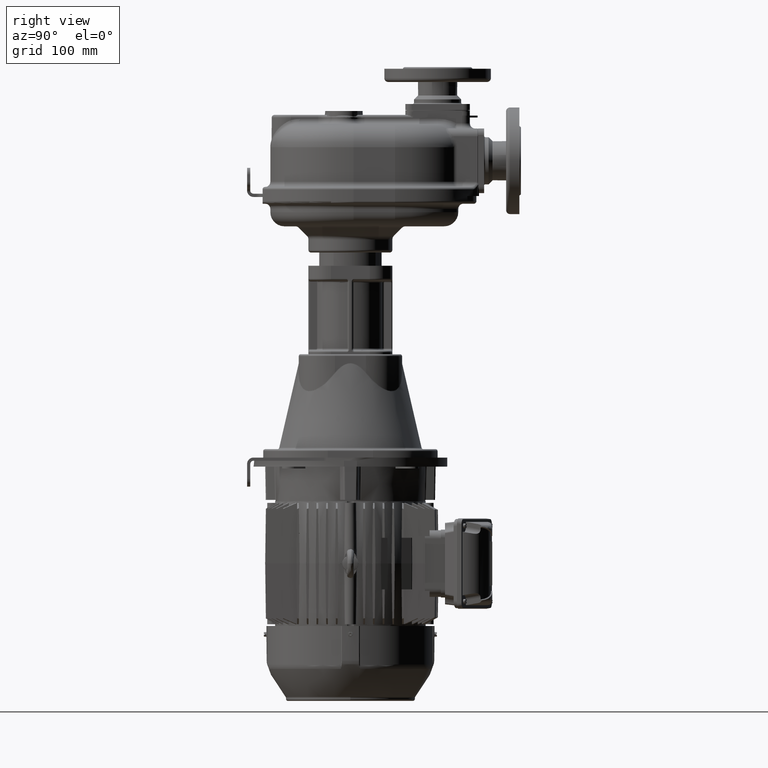
[diagram: clean part render]
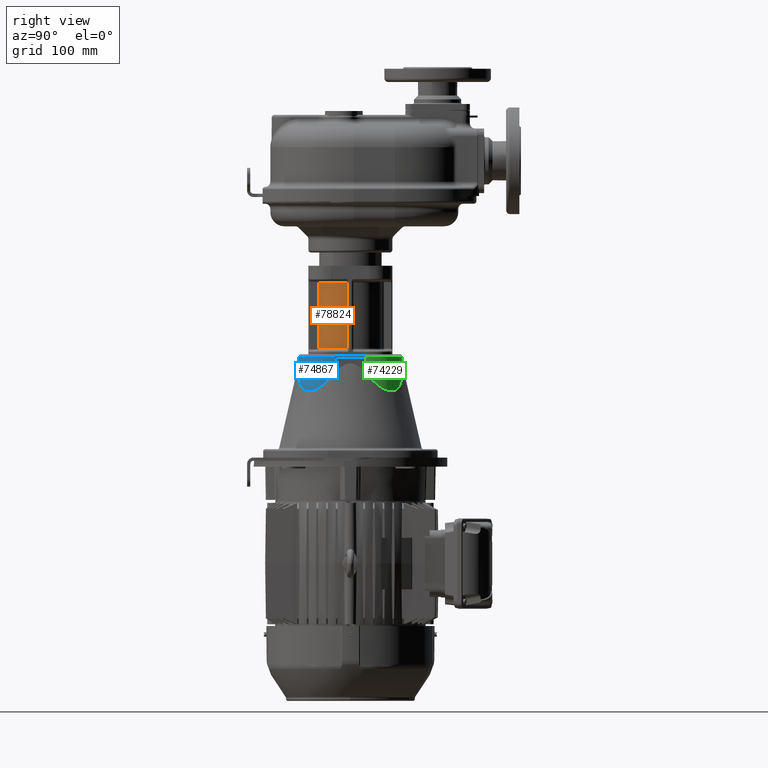
[diagram: same view with three faces highlighted in distinct colors, each labeled with its STEP entity id]
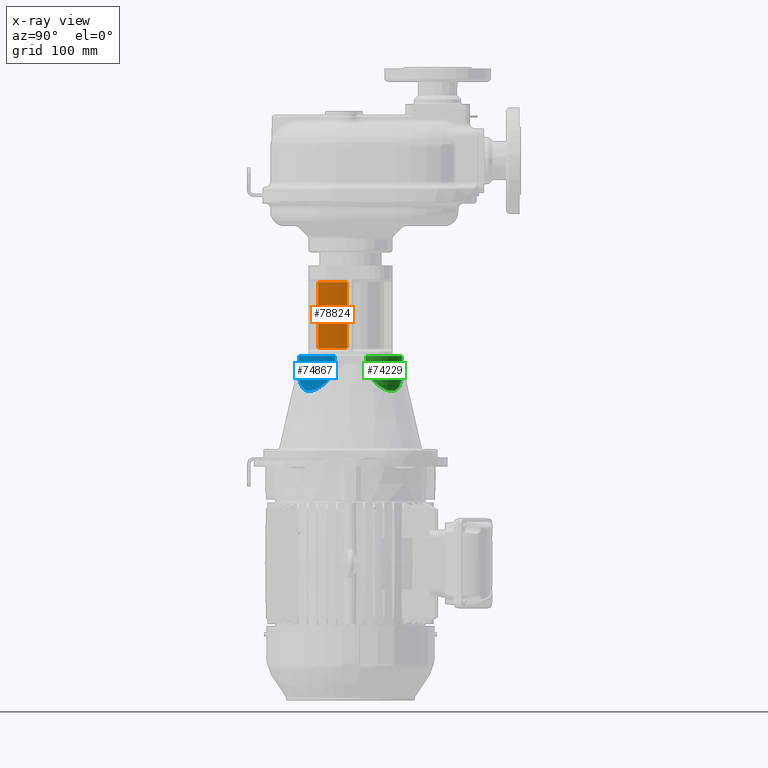
[diagram: x-ray of the same camera — body ghosted, the three highlighted faces saturated]
A machine part, right view with three faces highlighted in distinct colors.
The next image is the same camera in x-ray (body ghosted, the three faces saturated) — at least one of them is partly hidden behind the body in this view.
Their STEP definitions:

[orange] entity #78824 — the highlighted cylindrical surface (edge-blend (fillet) strip) has radius 50 mm, axis along (0, 0, -1).
#22696=CARTESIAN_POINT('',(0.E0,1.6E2,-2.635E2));
#22697=DIRECTION('',(0.E0,0.E0,1.E0));
#22698=DIRECTION('',(1.057692307692E-1,-9.943907028037E-1,0.E0));
#22699=AXIS2_PLACEMENT_3D('',#22696,#22697,#22698);
#22701=CARTESIAN_POINT('',(4.971953514590E1,1.547115384609E2,-2.635E2));
#22752=DIRECTION('',(-3.724079868013E-13,3.501164499932E-12,1.E0));
#22753=VECTOR('',#22752,1.02E2);
#22754=CARTESIAN_POINT('',(5.288461539069E0,1.102804648541E2,-2.635E2));
#22755=LINE('',#22754,#22753);
#22756=DIRECTION('',(3.501582466247E-12,-3.728259531165E-13,-1.E0));
#22757=VECTOR('',#22756,1.02E2);
#22758=CARTESIAN_POINT('',(4.971953514554E1,1.547115384610E2,-1.615E2));
#22759=LINE('',#22758,#22757);
#22760=CARTESIAN_POINT('',(5.288461539031E0,1.102804648545E2,-1.615E2));
#22837=CARTESIAN_POINT('',(0.E0,1.6E2,-1.615E2));
#22838=DIRECTION('',(0.E0,0.E0,-1.E0));
#22839=DIRECTION('',(9.943907028037E-1,-1.057692307692E-1,0.E0));
#22840=AXIS2_PLACEMENT_3D('',#22837,#22838,#22839);
#43121=VERTEX_POINT('',#22760);
#43122=CARTESIAN_POINT('',(5.288461539069E0,1.102804648541E2,-2.635E2));
#43123=VERTEX_POINT('',#43122);
#43143=VERTEX_POINT('',#22701);
#43144=CARTESIAN_POINT('',(4.971953514554E1,1.547115384610E2,-1.615E2));
#43145=VERTEX_POINT('',#43144);
#78811=CARTESIAN_POINT('',(0.E0,1.6E2,-1.366E2));
#78812=DIRECTION('',(0.E0,0.E0,-1.E0));
#78813=DIRECTION('',(0.E0,-1.E0,0.E0));
#78814=AXIS2_PLACEMENT_3D('',#78811,#78812,#78813);
#78815=CYLINDRICAL_SURFACE('',#78814,5.E1);
#78816=ORIENTED_EDGE('',*,*,#78802,.T.);
#78818=ORIENTED_EDGE('',*,*,#78817,.F.);
#78820=ORIENTED_EDGE('',*,*,#78819,.T.);
#78821=ORIENTED_EDGE('',*,*,#78660,.F.);
#78822=EDGE_LOOP('',(#78816,#78818,#78820,#78821));
#78823=FACE_OUTER_BOUND('',#78822,.F.);
#78824=ADVANCED_FACE('',(#78823),#78815,.T.);
#22700=CIRCLE('',#22699,5.E1);
#22841=CIRCLE('',#22840,5.E1);
#78660=EDGE_CURVE('',#43123,#43143,#22700,.T.);
#78802=EDGE_CURVE('',#43123,#43121,#22755,.T.);
#78817=EDGE_CURVE('',#43145,#43121,#22841,.T.);
#78819=EDGE_CURVE('',#43145,#43143,#22759,.T.);

[blue] entity #74867 — the highlighted cylindrical surface (edge-blend (fillet) strip) has radius 56 mm, axis along (0, 0, 1).
#19339=CARTESIAN_POINT('',(2.4E1,8.000000000021E1,-3.009786503790E2));
#19890=CARTESIAN_POINT('',(7.999999999978E1,1.36E2,-3.009786503790E2));
#19892=DIRECTION('',(-8.694848858162E-12,0.E0,-1.E0));
#19893=VECTOR('',#19892,2.547865037899E1);
#19894=CARTESIAN_POINT('',(8.E1,1.36E2,-2.755E2));
#19895=LINE('',#19894,#19893);
#19914=DIRECTION('',(0.E0,8.370792973462E-12,-1.E0));
#19915=VECTOR('',#19914,2.547865037899E1);
#19916=CARTESIAN_POINT('',(2.4E1,8.E1,-2.755E2));
#19917=LINE('',#19916,#19915);
#19918=CARTESIAN_POINT('',(2.4E1,1.36E2,-2.755E2));
#19919=DIRECTION('',(0.E0,0.E0,1.E0));
#19920=DIRECTION('',(0.E0,-1.E0,0.E0));
#19921=AXIS2_PLACEMENT_3D('',#19918,#19919,#19920);
#19923=CARTESIAN_POINT('',(7.999999999978E1,1.36E2,-3.009786503790E2));
#19924=CARTESIAN_POINT('',(7.999999999841E1,1.355676724683E2,
-3.015266865774E2));
#19925=CARTESIAN_POINT('',(7.998998081326E1,1.347097104714E2,
-3.025991661067E2));
#19926=CARTESIAN_POINT('',(7.994638299247E1,1.334451851839E2,
-3.041369507867E2));
#19927=CARTESIAN_POINT('',(7.987563354556E1,1.322024273054E2,
-3.056072532359E2));
#19928=CARTESIAN_POINT('',(7.977912547259E1,1.309819901915E2,
-3.070119020697E2));
#19929=CARTESIAN_POINT('',(7.965821725897E1,1.297840432757E2,
-3.083531006845E2));
#19930=CARTESIAN_POINT('',(7.951419216456E1,1.286084969839E2,
-3.096332163203E2));
#19931=CARTESIAN_POINT('',(7.934830462238E1,1.274554023195E2,
-3.108543455354E2));
#19932=CARTESIAN_POINT('',(7.916174347485E1,1.263246317512E2,
-3.120186699584E2));
#19933=CARTESIAN_POINT('',(7.895565096245E1,1.252160588409E2,
-3.131282604062E2));
#19934=CARTESIAN_POINT('',(7.873111388403E1,1.241294922137E2,
-3.141851516731E2));
#19935=CARTESIAN_POINT('',(7.848916589729E1,1.230647016260E2,
-3.151913170777E2));
#19936=CARTESIAN_POINT('',(7.823078707628E1,1.220214174002E2,
-3.161486720307E2));
#19937=CARTESIAN_POINT('',(7.795690419769E1,1.209993352873E2,
-3.170590716598E2));
#19938=CARTESIAN_POINT('',(7.766839182889E1,1.199981222090E2,
-3.179243081377E2));
#19939=CARTESIAN_POINT('',(7.736607245938E1,1.190174176251E2,
-3.187461120234E2));
#19940=CARTESIAN_POINT('',(7.705071683462E1,1.180568357608E2,
-3.195261525901E2));
#19941=CARTESIAN_POINT('',(7.672304556570E1,1.171159711564E2,
-3.202660353548E2));
#19942=CARTESIAN_POINT('',(7.638373004362E1,1.161944011159E2,
-3.209673027864E2));
#19943=CARTESIAN_POINT('',(7.603339361375E1,1.152916886129E2,
-3.216314343035E2));
#19944=CARTESIAN_POINT('',(7.567261287363E1,1.144073850873E2,
-3.222598464464E2));
#19945=CARTESIAN_POINT('',(7.530191905352E1,1.135410330776E2,
-3.228538931850E2));
#19946=CARTESIAN_POINT('',(7.492179931041E1,1.126921683521E2,
-3.234148665946E2));
#19947=CARTESIAN_POINT('',(7.453269817485E1,1.118603221811E2,
-3.239439974095E2));
#19948=CARTESIAN_POINT('',(7.413501915765E1,1.110450236847E2,
-3.244424555929E2));
#19949=CARTESIAN_POINT('',(7.372912597807E1,1.102458011992E2,
-3.249113515532E2));
#19950=CARTESIAN_POINT('',(7.331534398611E1,1.094621839739E2,
-3.253517370029E2));
#19951=CARTESIAN_POINT('',(7.289396153973E1,1.086937036609E2,
-3.257646059190E2));
#19952=CARTESIAN_POINT('',(7.246523141302E1,1.079398957759E2,
-3.261508954781E2));
#19953=CARTESIAN_POINT('',(7.202937214594E1,1.072003009739E2,
-3.265114870629E2));
#19954=CARTESIAN_POINT('',(7.158656938440E1,1.064744662567E2,
-3.268472072395E2));
#19955=CARTESIAN_POINT('',(7.113697731605E1,1.057619462726E2,
-3.271588288490E2));
#19956=CARTESIAN_POINT('',(7.068071965588E1,1.050623038637E2,
-3.274470721218E2));
#19957=CARTESIAN_POINT('',(7.021789086537E1,1.043751110197E2,
-3.277126056073E2));
#19958=CARTESIAN_POINT('',(6.974855728749E1,1.036999496870E2,
-3.279560471146E2));
#19959=CARTESIAN_POINT('',(6.927275823747E1,1.030364125171E2,
-3.281779646213E2));
#19960=CARTESIAN_POINT('',(6.879050700130E1,1.023841035007E2,
-3.283788771482E2));
#19961=CARTESIAN_POINT('',(6.830179193949E1,1.017426387559E2,
-3.285592555728E2));
#19962=CARTESIAN_POINT('',(6.780657729728E1,1.011116469418E2,
-3.287195236450E2));
#19963=CARTESIAN_POINT('',(6.730480416220E1,1.004907699022E2,
-3.288600584756E2));
#19964=CARTESIAN_POINT('',(6.679639114030E1,9.987966298764E1,
-3.289811912291E2));
#19965=CARTESIAN_POINT('',(6.628123520265E1,9.927799563931E1,
-3.290832076909E2));
#19966=CARTESIAN_POINT('',(6.575921244402E1,9.868545188824E1,
-3.291663487651E2));
#19967=CARTESIAN_POINT('',(6.523017857897E1,9.810173060738E1,
-3.292308108942E2));
#19968=CARTESIAN_POINT('',(6.469396991148E1,9.752654633390E1,
-3.292767465210E2));
#19969=CARTESIAN_POINT('',(6.415040366163E1,9.695962940854E1,
-3.293042644747E2));
#19970=CARTESIAN_POINT('',(6.359927855995E1,9.640072648224E1,
-3.293134299404E2));
#19971=CARTESIAN_POINT('',(6.304037559344E1,9.584960120003E1,
-3.293042646374E2));
#19972=CARTESIAN_POINT('',(6.247345839983E1,9.530603456E1,-3.292767468309E2));
#19973=CARTESIAN_POINT('',(6.189827367349E1,9.476982535130E1,
-3.292308113087E2));
#19974=CARTESIAN_POINT('',(6.131455189457E1,9.424079093122E1,
-3.291663492443E2));
#19975=CARTESIAN_POINT('',(6.072200758638E1,9.371876759422E1,
-3.290832081968E2));
#19976=CARTESIAN_POINT('',(6.012033976053E1,9.320361117528E1,
-3.289811917383E2));
#19977=CARTESIAN_POINT('',(5.950923239971E1,9.269519772156E1,
-3.288600589666E2));
#19978=CARTESIAN_POINT('',(5.888835489407E1,9.219342416100E1,
-3.287195240933E2));
#19979=CARTESIAN_POINT('',(5.825736256793E1,9.169820907976E1,
-3.285592559349E2));
#19980=CARTESIAN_POINT('',(5.761589721838E1,9.120949353382E1,
-3.283788773651E2));
#19981=CARTESIAN_POINT('',(5.696358764932E1,9.072724187981E1,
-3.281779646795E2));
#19982=CARTESIAN_POINT('',(5.630004997159E1,9.025144246804E1,
-3.279560469991E2));
#19983=CARTESIAN_POINT('',(5.562488818953E1,8.978210859040E1,
-3.277126053150E2));
#19984=CARTESIAN_POINT('',(5.493769488116E1,8.931927950893E1,
-3.274470716256E2));
#19985=CARTESIAN_POINT('',(5.423805198658E1,8.886302156403E1,
-3.271588281141E2));
#19986=CARTESIAN_POINT('',(5.352553155891E1,8.841342925756E1,
-3.268472062596E2));
#19987=CARTESIAN_POINT('',(5.279969646925E1,8.797062631876E1,
-3.265114858508E2));
#19988=CARTESIAN_POINT('',(5.206010136563E1,8.753476693021E1,
-3.261508940502E2));
#19989=CARTESIAN_POINT('',(5.130629319719E1,8.710603670381E1,
-3.257646042714E2));
#19990=CARTESIAN_POINT('',(5.053781260821E1,8.668465417308E1,
-3.253517351261E2));
#19991=CARTESIAN_POINT('',(4.975419514911E1,8.627087212959E1,
-3.249113494573E2));
#19992=CARTESIAN_POINT('',(4.895497248357E1,8.586497893424E1,
-3.244424532987E2));
#19993=CARTESIAN_POINT('',(4.813967384174E1,8.546729992459E1,
-3.239439949294E2));
#19994=CARTESIAN_POINT('',(4.730782755687E1,8.507819881669E1,
-3.234148639417E2));
#19995=CARTESIAN_POINT('',(4.645896278296E1,8.469807913445E1,
-3.228538903978E2));
#19996=CARTESIAN_POINT('',(4.559261079935E1,8.432738540807E1,
-3.222598435741E2));
#19997=CARTESIAN_POINT('',(4.470830734131E1,8.396660477672E1,
-3.216314313768E2));
#19998=CARTESIAN_POINT('',(4.380559492540E1,8.361626846069E1,
-3.209672998221E2));
#19999=CARTESIAN_POINT('',(4.288402510208E1,8.327695309641E1,
-3.202660324571E2));
#20000=CARTESIAN_POINT('',(4.194316087987E1,8.294928203205E1,
-3.195261499005E2));
#20001=CARTESIAN_POINT('',(4.098257943420E1,8.263392660782E1,
-3.187461095932E2));
#20002=CARTESIAN_POINT('',(4.000187527653E1,8.233160742406E1,
-3.179243059949E2));
#20003=CARTESIAN_POINT('',(3.900066249233E1,8.204309518642E1,
-3.170590697102E2));
#20004=CARTESIAN_POINT('',(3.797858048537E1,8.176921237899E1,
-3.161486701207E2));
#20005=CARTESIAN_POINT('',(3.693529622401E1,8.151083359158E1,
-3.151913150751E2));
#20006=CARTESIAN_POINT('',(3.587050545121E1,8.126888560808E1,
-3.141851494337E2));
#20007=CARTESIAN_POINT('',(3.478393869037E1,8.104434855342E1,
-3.131282579693E2));
#20008=CARTESIAN_POINT('',(3.367536595758E1,8.083825612480E1,
-3.120186676282E2));
#20009=CARTESIAN_POINT('',(3.254459539099E1,8.065169502188E1,
-3.108543431510E2));
#20010=CARTESIAN_POINT('',(3.139150031483E1,8.048580747506E1,
-3.096332134195E2));
#20011=CARTESIAN_POINT('',(3.021595419107E1,8.034178245843E1,
-3.083530978893E2));
#20012=CARTESIAN_POINT('',(2.901800712485E1,8.022087428606E1,
-3.070118990243E2));
#20013=CARTESIAN_POINT('',(2.779757038382E1,8.012436630186E1,
-3.056072505285E2));
#20014=CARTESIAN_POINT('',(2.655481307393E1,8.005361693100E1,
-3.041369486900E2));
#20015=CARTESIAN_POINT('',(2.529028825646E1,8.001001916424E1,
-3.025991645279E2));
#20016=CARTESIAN_POINT('',(2.443232705909E1,7.999999999934E1,
-3.015266859824E2));
#20017=CARTESIAN_POINT('',(2.4E1,8.000000000021E1,-3.009786503790E2));
#43305=CARTESIAN_POINT('',(8.E1,1.36E2,-2.755E2));
#43306=VERTEX_POINT('',#43305);
#43309=CARTESIAN_POINT('',(2.4E1,8.E1,-2.755E2));
#43310=VERTEX_POINT('',#43309);
#43360=VERTEX_POINT('',#19890);
#43363=VERTEX_POINT('',#19339);
#74855=CARTESIAN_POINT('',(2.4E1,1.36E2,-2.735E2));
#74856=DIRECTION('',(0.E0,0.E0,1.E0));
#74857=DIRECTION('',(0.E0,1.E0,0.E0));
#74858=AXIS2_PLACEMENT_3D('',#74855,#74856,#74857);
#74859=CYLINDRICAL_SURFACE('',#74858,5.6E1);
#74860=ORIENTED_EDGE('',*,*,#72414,.F.);
#74862=ORIENTED_EDGE('',*,*,#74861,.T.);
#74863=ORIENTED_EDGE('',*,*,#74237,.T.);
#74864=ORIENTED_EDGE('',*,*,#74848,.T.);
#74865=EDGE_LOOP('',(#74860,#74862,#74863,#74864));
#74866=FACE_OUTER_BOUND('',#74865,.F.);
#74867=ADVANCED_FACE('',(#74866),#74859,.T.);
#19922=CIRCLE('',#19921,5.6E1);
#20018=B_SPLINE_CURVE_WITH_KNOTS('',3,(#19923,#19924,#19925,#19926,#19927,
#19928,#19929,#19930,#19931,#19932,#19933,#19934,#19935,#19936,#19937,#19938,
#19939,#19940,#19941,#19942,#19943,#19944,#19945,#19946,#19947,#19948,#19949,
#19950,#19951,#19952,#19953,#19954,#19955,#19956,#19957,#19958,#19959,#19960,
#19961,#19962,#19963,#19964,#19965,#19966,#19967,#19968,#19969,#19970,#19971,
#19972,#19973,#19974,#19975,#19976,#19977,#19978,#19979,#19980,#19981,#19982,
#19983,#19984,#19985,#19986,#19987,#19988,#19989,#19990,#19991,#19992,#19993,
#19994,#19995,#19996,#19997,#19998,#19999,#20000,#20001,#20002,#20003,#20004,
#20005,#20006,#20007,#20008,#20009,#20010,#20011,#20012,#20013,#20014,#20015,
#20016,#20017),.UNSPECIFIED.,.F.,.F.,(4,1,1,1,1,1,1,1,1,1,1,1,1,1,1,1,1,1,1,1,1,
1,1,1,1,1,1,1,1,1,1,1,1,1,1,1,1,1,1,1,1,1,1,1,1,1,1,1,1,1,1,1,1,1,1,1,1,1,1,1,1,
1,1,1,1,1,1,1,1,1,1,1,1,1,1,1,1,1,1,1,1,1,1,1,1,1,1,1,1,1,1,1,4),(0.E0,
1.086956521739E-2,2.173913043478E-2,3.260869565217E-2,4.347826086957E-2,
5.434782608696E-2,6.521739130435E-2,7.608695652174E-2,8.695652173913E-2,
9.782608695652E-2,1.086956521739E-1,1.195652173913E-1,1.304347826087E-1,
1.413043478261E-1,1.521739130435E-1,1.630434782609E-1,1.739130434783E-1,
1.847826086957E-1,1.956521739130E-1,2.065217391304E-1,2.173913043478E-1,
2.282608695652E-1,2.391304347826E-1,2.5E-1,2.608695652174E-1,2.717391304348E-1,
2.826086956522E-1,2.934782608696E-1,3.043478260870E-1,3.152173913043E-1,
3.260869565217E-1,3.369565217391E-1,3.478260869565E-1,3.586956521739E-1,
3.695652173913E-1,3.804347826087E-1,3.913043478261E-1,4.021739130435E-1,
4.130434782609E-1,4.239130434783E-1,4.347826086957E-1,4.456521739130E-1,
4.565217391304E-1,4.673913043478E-1,4.782608695652E-1,4.891304347826E-1,5.E-1,
5.108695652174E-1,5.217391304348E-1,5.326086956522E-1,5.434782608696E-1,
5.543478260870E-1,5.652173913043E-1,5.760869565217E-1,5.869565217391E-1,
5.978260869565E-1,6.086956521739E-1,6.195652173913E-1,6.304347826087E-1,
6.413043478261E-1,6.521739130435E-1,6.630434782609E-1,6.739130434783E-1,
6.847826086957E-1,6.956521739130E-1,7.065217391304E-1,7.173913043478E-1,
7.282608695652E-1,7.391304347826E-1,7.5E-1,7.608695652174E-1,7.717391304348E-1,
7.826086956522E-1,7.934782608696E-1,8.043478260870E-1,8.152173913043E-1,
8.260869565217E-1,8.369565217391E-1,8.478260869565E-1,8.586956521739E-1,
8.695652173913E-1,8.804347826087E-1,8.913043478261E-1,9.021739130435E-1,
9.130434782609E-1,9.239130434783E-1,9.347826086957E-1,9.456521739130E-1,
9.565217391304E-1,9.673913043478E-1,9.782608695652E-1,9.891304347826E-1,1.E0),
.UNSPECIFIED.);
#72414=EDGE_CURVE('',#43310,#43363,#19917,.T.);
#74237=EDGE_CURVE('',#43306,#43360,#19895,.T.);
#74848=EDGE_CURVE('',#43360,#43363,#20018,.T.);
#74861=EDGE_CURVE('',#43310,#43306,#19922,.T.);

[green] entity #74229 — the highlighted cylindrical surface (edge-blend (fillet) strip) has radius 56 mm, axis along (0, 0, 1).
#19691=CARTESIAN_POINT('',(2.4E1,2.399999999998E2,-3.009786503790E2));
#19693=DIRECTION('',(0.E0,-8.758990728627E-12,-1.E0));
#19694=VECTOR('',#19693,2.547865037899E1);
#19695=CARTESIAN_POINT('',(2.4E1,2.4E2,-2.755E2));
#19696=LINE('',#19695,#19694);
#19721=CARTESIAN_POINT('',(2.4E1,2.399999999998E2,-3.009786503790E2));
#19722=CARTESIAN_POINT('',(2.443232746115E1,2.399999999983E2,
-3.015266864879E2));
#19723=CARTESIAN_POINT('',(2.529028938481E1,2.399899808164E2,
-3.025991659302E2));
#19724=CARTESIAN_POINT('',(2.655481476965E1,2.399463829969E2,
-3.041369507331E2));
#19725=CARTESIAN_POINT('',(2.779757299552E1,2.398756335261E2,
-3.056072535857E2));
#19726=CARTESIAN_POINT('',(2.901800998950E1,2.397791254550E2,
-3.070119022745E2));
#19727=CARTESIAN_POINT('',(3.021595677629E1,2.396582172519E2,
-3.083531007420E2));
#19728=CARTESIAN_POINT('',(3.139150294901E1,2.395141921745E2,
-3.096332162479E2));
#19729=CARTESIAN_POINT('',(3.254459794222E1,2.393483045836E2,
-3.108543458135E2));
#19730=CARTESIAN_POINT('',(3.367536846460E1,2.391617434353E2,
-3.120186701739E2));
#19731=CARTESIAN_POINT('',(3.478394114966E1,2.389556509636E2,
-3.131282603966E2));
#19732=CARTESIAN_POINT('',(3.587050785257E1,2.387311138709E2,
-3.141851517367E2));
#19733=CARTESIAN_POINT('',(3.693529859944E1,2.384891658443E2,
-3.151913172872E2));
#19734=CARTESIAN_POINT('',(3.797858277214E1,2.382307870309E2,
-3.161486721872E2));
#19735=CARTESIAN_POINT('',(3.900066473628E1,2.379569041906E2,
-3.170590716798E2));
#19736=CARTESIAN_POINT('',(4.000187785E1,2.376683918121E2,-3.179243081892E2));
#19737=CARTESIAN_POINT('',(4.098258255163E1,2.373660724035E2,
-3.187461121697E2));
#19738=CARTESIAN_POINT('',(4.194316437181E1,2.370507167891E2,
-3.195261526948E2));
#19739=CARTESIAN_POINT('',(4.288402889667E1,2.367230455464E2,
-3.202660353958E2));
#19740=CARTESIAN_POINT('',(4.380559895153E1,2.363837300185E2,
-3.209673028371E2));
#19741=CARTESIAN_POINT('',(4.470831151985E1,2.360333935613E2,
-3.216314343999E2));
#19742=CARTESIAN_POINT('',(4.559261506327E1,2.356726128107E2,
-3.222598465518E2));
#19743=CARTESIAN_POINT('',(4.645896706592E1,2.353019189907E2,
-3.228538932817E2));
#19744=CARTESIAN_POINT('',(4.730783179829E1,2.349217992417E2,
-3.234148666921E2));
#19745=CARTESIAN_POINT('',(4.813967798372E1,2.345326980961E2,
-3.239439975124E2));
#19746=CARTESIAN_POINT('',(4.895497647222E1,2.341350190794E2,
-3.244424556870E2));
#19747=CARTESIAN_POINT('',(4.975419893462E1,2.337291259086E2,
-3.249113516300E2));
#19748=CARTESIAN_POINT('',(5.053781614478E1,2.333153439222E2,
-3.253517370681E2));
#19749=CARTESIAN_POINT('',(5.130629644305E1,2.328939614815E2,
-3.257646059731E2));
#19750=CARTESIAN_POINT('',(5.206010428280E1,2.324652313786E2,
-3.261508955066E2));
#19751=CARTESIAN_POINT('',(5.279969902354E1,2.320293721472E2,
-3.265114870615E2));
#19752=CARTESIAN_POINT('',(5.352553372018E1,2.315865693988E2,
-3.268472072286E2));
#19753=CARTESIAN_POINT('',(5.423805372759E1,2.311369773162E2,
-3.271588288497E2));
#19754=CARTESIAN_POINT('',(5.493769617851E1,2.306807196281E2,
-3.274470721396E2));
#19755=CARTESIAN_POINT('',(5.562488902212E1,2.302178908365E2,
-3.277126056222E2));
#19756=CARTESIAN_POINT('',(5.630005032245E1,2.297485572807E2,
-3.279560471172E2));
#19757=CARTESIAN_POINT('',(5.696358750646E1,2.292727582205E2,
-3.281779646297E2));
#19758=CARTESIAN_POINT('',(5.761589657093E1,2.287905069482E2,
-3.283788771696E2));
#19759=CARTESIAN_POINT('',(5.825736140786E1,2.283017918132E2,
-3.285592556191E2));
#19760=CARTESIAN_POINT('',(5.888835321388E1,2.278065771729E2,
-3.287195236842E2));
#19761=CARTESIAN_POINT('',(5.950923019638E1,2.273048040808E2,
-3.288600584934E2));
#19762=CARTESIAN_POINT('',(6.012033703448E1,2.267963911210E2,
-3.289811912318E2));
#19763=CARTESIAN_POINT('',(6.072200434015E1,2.262812352206E2,
-3.290832076886E2));
#19764=CARTESIAN_POINT('',(6.131454813212E1,2.257592124261E2,
-3.291663487671E2));
#19765=CARTESIAN_POINT('',(6.189826940241E1,2.252301785697E2,
-3.292308108957E2));
#19766=CARTESIAN_POINT('',(6.247345362340E1,2.246939699512E2,
-3.292767465177E2));
#19767=CARTESIAN_POINT('',(6.304037046672E1,2.241504037822E2,
-3.293042644668E2));
#19768=CARTESIAN_POINT('',(6.359927335688E1,2.235992787209E2,
-3.293134299405E2));
#19769=CARTESIAN_POINT('',(6.415039869006E1,2.230403757073E2,
-3.293042646451E2));
#19770=CARTESIAN_POINT('',(6.469396541888E1,2.224734584229E2,
-3.292767468330E2));
#19771=CARTESIAN_POINT('',(6.523017467848E1,2.218982736414E2,
-3.292308113051E2));
#19772=CARTESIAN_POINT('',(6.575920910434E1,2.213145518545E2,
-3.291663492397E2));
#19773=CARTESIAN_POINT('',(6.628123240665E1,2.207220075853E2,
-3.290832081957E2));
#19774=CARTESIAN_POINT('',(6.679638886274E1,2.201203397162E2,
-3.289811917315E2));
#19775=CARTESIAN_POINT('',(6.730480237738E1,2.195092322797E2,
-3.288600589442E2));
#19776=CARTESIAN_POINT('',(6.780657597923E1,2.188883547184E2,
-3.287195240493E2));
#19777=CARTESIAN_POINT('',(6.830179106132E1,2.182573623849E2,
-3.285592558835E2));
#19778=CARTESIAN_POINT('',(6.879050653537E1,2.176158971253E2,
-3.283788773374E2));
#19779=CARTESIAN_POINT('',(6.927275815388E1,2.169635876028E2,
-3.281779646638E2));
#19780=CARTESIAN_POINT('',(6.974855755577E1,2.163000499380E2,
-3.279560469881E2));
#19781=CARTESIAN_POINT('',(7.021789145433E1,2.156248881244E2,
-3.277126052914E2));
#19782=CARTESIAN_POINT('',(7.068072053364E1,2.149376948166E2,
-3.274470715988E2));
#19783=CARTESIAN_POINT('',(7.113697845017E1,2.142380519640E2,
-3.271588281039E2));
#19784=CARTESIAN_POINT('',(7.158657074195E1,2.135255315596E2,
-3.268472062604E2));
#19785=CARTESIAN_POINT('',(7.202937369328E1,2.127996964497E2,
-3.265114858417E2));
#19786=CARTESIAN_POINT('',(7.246523311630E1,2.120601012860E2,
-3.261508940112E2));
#19787=CARTESIAN_POINT('',(7.289396336557E1,2.113062930733E2,
-3.257646042068E2));
#19788=CARTESIAN_POINT('',(7.331534590144E1,2.105378124699E2,
-3.253517350501E2));
#19789=CARTESIAN_POINT('',(7.372912795008E1,2.097541949955E2,
-3.249113493692E2));
#19790=CARTESIAN_POINT('',(7.413502115386E1,2.089549723068E2,
-3.244424531928E2));
#19791=CARTESIAN_POINT('',(7.453270016356E1,2.081396736571E2,
-3.239439948142E2));
#19792=CARTESIAN_POINT('',(7.492180126113E1,2.073078273866E2,
-3.234148638313E2));
#19793=CARTESIAN_POINT('',(7.530192093716E1,2.064589626194E2,
-3.228538902876E2));
#19794=CARTESIAN_POINT('',(7.567261466310E1,2.055926106291E2,
-3.222598434550E2));
#19795=CARTESIAN_POINT('',(7.603339528326E1,2.047083071898E2,
-3.216314312668E2));
#19796=CARTESIAN_POINT('',(7.638373157134E1,2.038055948397E2,
-3.209672997578E2));
#19797=CARTESIAN_POINT('',(7.672304692939E1,2.028840250308E2,
-3.202660324020E2));
#19798=CARTESIAN_POINT('',(7.705071801948E1,2.019431607293E2,
-3.195261497814E2));
#19799=CARTESIAN_POINT('',(7.736607345336E1,2.009825792409E2,
-3.187461094332E2));
#19800=CARTESIAN_POINT('',(7.766839259732E1,2.000018752020E2,
-3.179243059303E2));
#19801=CARTESIAN_POINT('',(7.795690482509E1,1.990006624528E2,
-3.170590696762E2));
#19802=CARTESIAN_POINT('',(7.823078767067E1,1.979785802966E2,
-3.161486699493E2));
#19803=CARTESIAN_POINT('',(7.848916646486E1,1.969352959841E2,
-3.151913148521E2));
#19804=CARTESIAN_POINT('',(7.873111440792E1,1.958705053716E2,
-3.141851493573E2));
#19805=CARTESIAN_POINT('',(7.895565144833E1,1.947839386850E2,
-3.131282579643E2));
#19806=CARTESIAN_POINT('',(7.916174391738E1,1.936753657265E2,
-3.120186673972E2));
#19807=CARTESIAN_POINT('',(7.934830501863E1,1.925445951176E2,
-3.108543428608E2));
#19808=CARTESIAN_POINT('',(7.951419251650E1,1.913915003708E2,
-3.096332134800E2));
#19809=CARTESIAN_POINT('',(7.965821755019E1,1.902159541252E2,
-3.083530978164E2));
#19810=CARTESIAN_POINT('',(7.977912573245E1,1.890180069332E2,
-3.070118988074E2));
#19811=CARTESIAN_POINT('',(7.987563371809E1,1.877975700749E2,
-3.056072501693E2));
#19812=CARTESIAN_POINT('',(7.994638306463E1,1.865548131179E2,
-3.041369487405E2));
#19813=CARTESIAN_POINT('',(7.998998083248E1,1.852902884074E2,
-3.025991647133E2));
#19814=CARTESIAN_POINT('',(8.000000000076E1,1.844323271330E2,
-3.015266860761E2));
#19815=CARTESIAN_POINT('',(7.999999999979E1,1.84E2,-3.009786503790E2));
#19817=CARTESIAN_POINT('',(2.4E1,1.84E2,-2.755E2));
#19818=DIRECTION('',(0.E0,0.E0,1.E0));
#19819=DIRECTION('',(1.E0,0.E0,0.E0));
#19820=AXIS2_PLACEMENT_3D('',#19817,#19818,#19819);
#19822=CARTESIAN_POINT('',(7.999999999979E1,1.84E2,-3.009786503790E2));
#19900=DIRECTION('',(8.333981117368E-12,0.E0,1.E0));
#19901=VECTOR('',#19900,2.547865037899E1);
#19902=CARTESIAN_POINT('',(7.999999999979E1,1.84E2,-3.009786503790E2));
#19903=LINE('',#19902,#19901);
#43297=CARTESIAN_POINT('',(2.4E1,2.4E2,-2.755E2));
#43298=VERTEX_POINT('',#43297);
#43301=CARTESIAN_POINT('',(8.E1,1.84E2,-2.755E2));
#43302=VERTEX_POINT('',#43301);
#43357=VERTEX_POINT('',#19691);
#43359=VERTEX_POINT('',#19822);
#74216=CARTESIAN_POINT('',(2.4E1,1.84E2,-2.735E2));
#74217=DIRECTION('',(0.E0,0.E0,1.E0));
#74218=DIRECTION('',(-1.E0,0.E0,0.E0));
#74219=AXIS2_PLACEMENT_3D('',#74216,#74217,#74218);
#74220=CYLINDRICAL_SURFACE('',#74219,5.6E1);
#74221=ORIENTED_EDGE('',*,*,#73219,.T.);
#74222=ORIENTED_EDGE('',*,*,#74207,.T.);
#74224=ORIENTED_EDGE('',*,*,#74223,.T.);
#74226=ORIENTED_EDGE('',*,*,#74225,.T.);
#74227=EDGE_LOOP('',(#74221,#74222,#74224,#74226));
#74228=FACE_OUTER_BOUND('',#74227,.F.);
#74229=ADVANCED_FACE('',(#74228),#74220,.T.);
#19816=B_SPLINE_CURVE_WITH_KNOTS('',3,(#19721,#19722,#19723,#19724,#19725,
#19726,#19727,#19728,#19729,#19730,#19731,#19732,#19733,#19734,#19735,#19736,
#19737,#19738,#19739,#19740,#19741,#19742,#19743,#19744,#19745,#19746,#19747,
#19748,#19749,#19750,#19751,#19752,#19753,#19754,#19755,#19756,#19757,#19758,
#19759,#19760,#19761,#19762,#19763,#19764,#19765,#19766,#19767,#19768,#19769,
#19770,#19771,#19772,#19773,#19774,#19775,#19776,#19777,#19778,#19779,#19780,
#19781,#19782,#19783,#19784,#19785,#19786,#19787,#19788,#19789,#19790,#19791,
#19792,#19793,#19794,#19795,#19796,#19797,#19798,#19799,#19800,#19801,#19802,
#19803,#19804,#19805,#19806,#19807,#19808,#19809,#19810,#19811,#19812,#19813,
#19814,#19815),.UNSPECIFIED.,.F.,.F.,(4,1,1,1,1,1,1,1,1,1,1,1,1,1,1,1,1,1,1,1,1,
1,1,1,1,1,1,1,1,1,1,1,1,1,1,1,1,1,1,1,1,1,1,1,1,1,1,1,1,1,1,1,1,1,1,1,1,1,1,1,1,
1,1,1,1,1,1,1,1,1,1,1,1,1,1,1,1,1,1,1,1,1,1,1,1,1,1,1,1,1,1,1,4),(0.E0,
1.086956521739E-2,2.173913043478E-2,3.260869565217E-2,4.347826086957E-2,
5.434782608696E-2,6.521739130435E-2,7.608695652174E-2,8.695652173913E-2,
9.782608695652E-2,1.086956521739E-1,1.195652173913E-1,1.304347826087E-1,
1.413043478261E-1,1.521739130435E-1,1.630434782609E-1,1.739130434783E-1,
1.847826086957E-1,1.956521739130E-1,2.065217391304E-1,2.173913043478E-1,
2.282608695652E-1,2.391304347826E-1,2.5E-1,2.608695652174E-1,2.717391304348E-1,
2.826086956522E-1,2.934782608696E-1,3.043478260870E-1,3.152173913043E-1,
3.260869565217E-1,3.369565217391E-1,3.478260869565E-1,3.586956521739E-1,
3.695652173913E-1,3.804347826087E-1,3.913043478261E-1,4.021739130435E-1,
4.130434782609E-1,4.239130434783E-1,4.347826086957E-1,4.456521739130E-1,
4.565217391304E-1,4.673913043478E-1,4.782608695652E-1,4.891304347826E-1,5.E-1,
5.108695652174E-1,5.217391304348E-1,5.326086956522E-1,5.434782608696E-1,
5.543478260870E-1,5.652173913043E-1,5.760869565217E-1,5.869565217391E-1,
5.978260869565E-1,6.086956521739E-1,6.195652173913E-1,6.304347826087E-1,
6.413043478261E-1,6.521739130435E-1,6.630434782609E-1,6.739130434783E-1,
6.847826086957E-1,6.956521739130E-1,7.065217391304E-1,7.173913043478E-1,
7.282608695652E-1,7.391304347826E-1,7.5E-1,7.608695652174E-1,7.717391304348E-1,
7.826086956522E-1,7.934782608696E-1,8.043478260870E-1,8.152173913043E-1,
8.260869565217E-1,8.369565217391E-1,8.478260869565E-1,8.586956521739E-1,
8.695652173913E-1,8.804347826087E-1,8.913043478261E-1,9.021739130435E-1,
9.130434782609E-1,9.239130434783E-1,9.347826086957E-1,9.456521739130E-1,
9.565217391304E-1,9.673913043478E-1,9.782608695652E-1,9.891304347826E-1,1.E0),
.UNSPECIFIED.);
#19821=CIRCLE('',#19820,5.6E1);
#73219=EDGE_CURVE('',#43298,#43357,#19696,.T.);
#74207=EDGE_CURVE('',#43357,#43359,#19816,.T.);
#74223=EDGE_CURVE('',#43359,#43302,#19903,.T.);
#74225=EDGE_CURVE('',#43302,#43298,#19821,.T.);